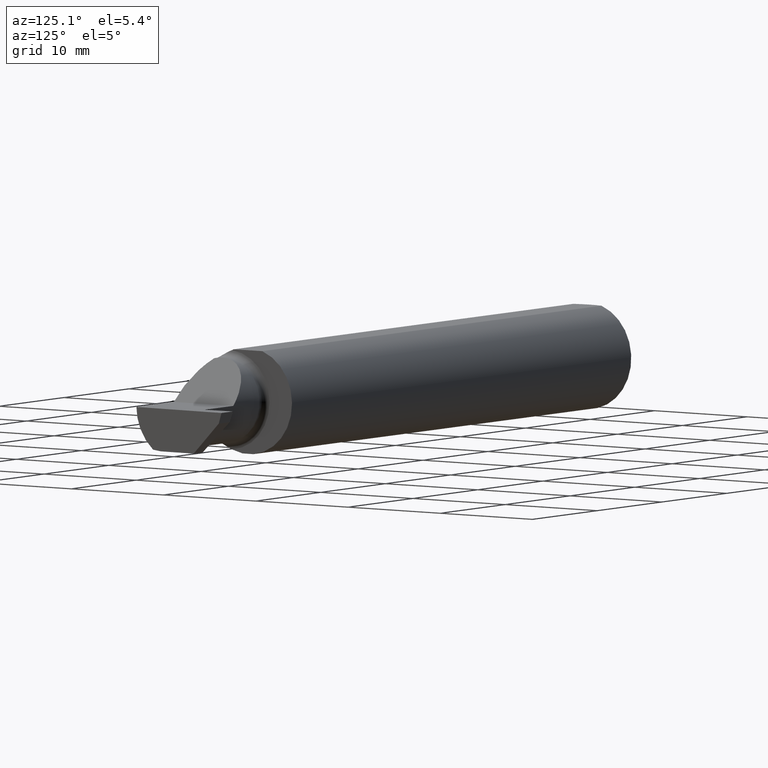
[diagram: clean part render]
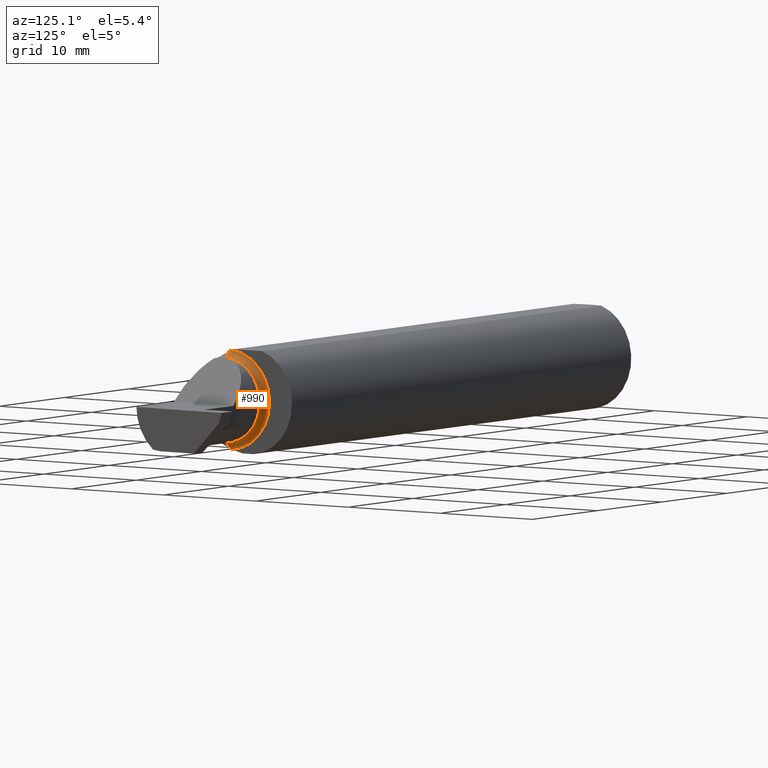
[diagram: same view with one face highlighted and labeled with its STEP entity id]
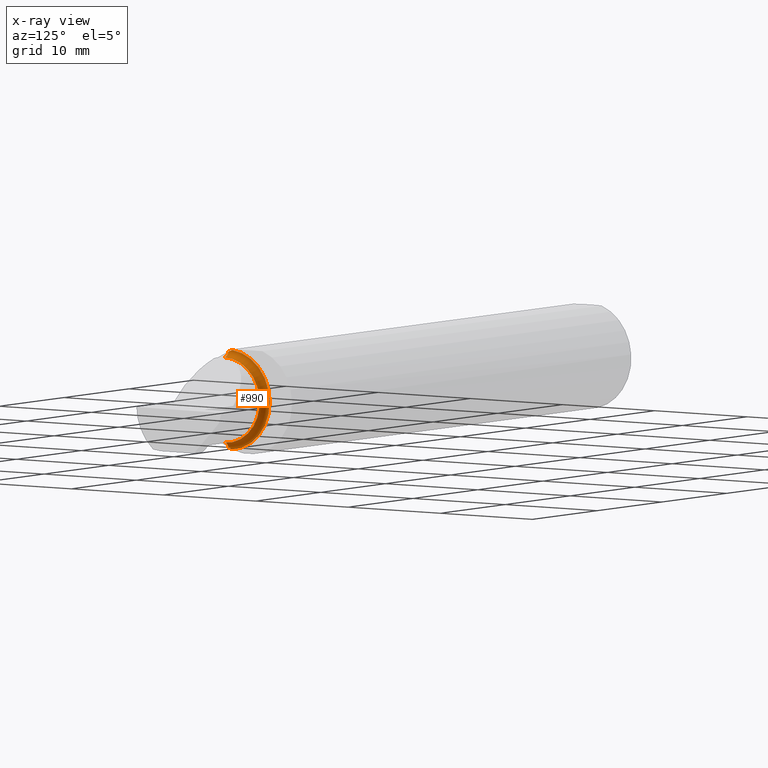
[diagram: x-ray of the same camera — body ghosted, the highlighted face saturated]
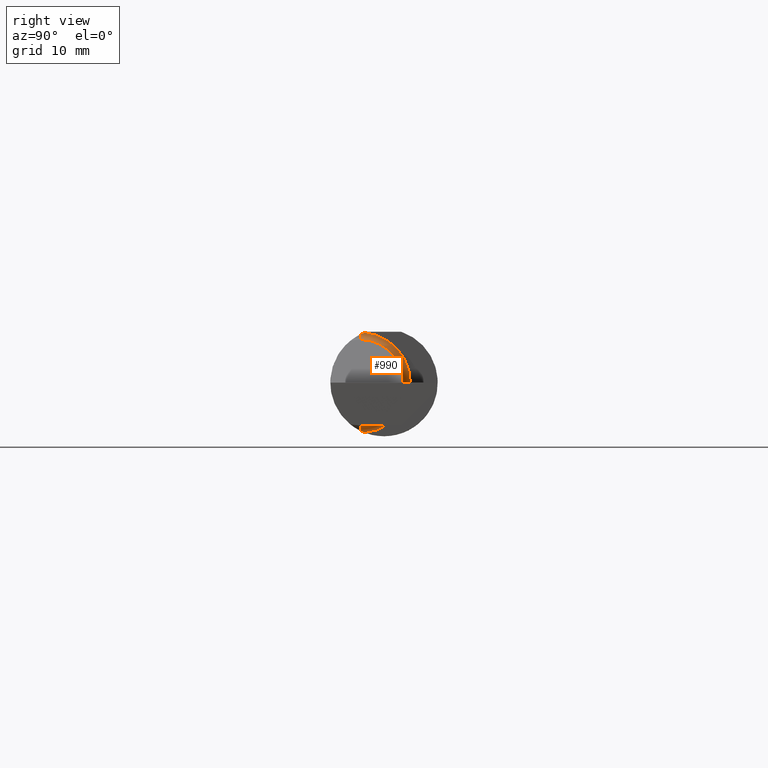
[diagram: same view with one face highlighted and labeled with its STEP entity id]
A machine part, auxiliary view. The second image highlights one B-rep face of the part: STEP entity #990.
The next image is the same camera in x-ray: the body ghosted, the highlighted face saturated — about 0% of this face is hidden behind the body in this view.
A second angle (right view) of the same face is appended — the face is thin or edge-on in the first view.
In plain terms, the highlighted toroidal blend (fillet) surface has major radius 4.445 mm and minor (blend) radius 0.635 mm.
Its self-contained STEP definition (entity closure, byte-faithful):
#20 = DIRECTION ( 'NONE',  ( 0.000000000000000000, 0.000000000000000000, 1.000000000000000000 ) ) ;
#39 = B_SPLINE_CURVE_WITH_KNOTS ( 'NONE', 3,
 ( #339, #425, #998, #661 ),
 .UNSPECIFIED., .F., .F.,
 ( 4, 4 ),
 ( 4.423516731080786679E-05, 0.0004561457252213464405 ),
 .UNSPECIFIED. ) ;
#51 = VERTEX_POINT ( 'NONE', #137 ) ;
#61 = EDGE_CURVE ( 'NONE', #463, #447, #168, .T. ) ;
#63 = DIRECTION ( 'NONE',  ( -1.000000000000000000, -0.000000000000000000, -0.000000000000000000 ) ) ;
#87 = ORIENTED_EDGE ( 'NONE', *, *, #61, .F. ) ;
#114 = CARTESIAN_POINT ( 'NONE',  ( 2.075000000000000178, -0.07359296612170559970, -0.1723769398647691520 ) ) ;
#122 = EDGE_LOOP ( 'NONE', ( #87, #278, #155, #796, #765, #392 ) ) ;
#130 = DIRECTION ( 'NONE',  ( 0.000000000000000000, 0.000000000000000000, 1.000000000000000000 ) ) ;
#131 = AXIS2_PLACEMENT_3D ( 'NONE', #635, #641, #334 ) ;
#133 = TOROIDAL_SURFACE ( 'NONE', #740, 0.1749999999999999889, 0.02499999999999993547 ) ;
#137 = CARTESIAN_POINT ( 'NONE',  ( 2.076062863587533780, -0.08334999999998812803, 0.1677879614275171183 ) ) ;
#141 = EDGE_CURVE ( 'NONE', #463, #1036, #822, .T. ) ;
#142 = EDGE_CURVE ( 'NONE', #241, #51, #39, .T. ) ;
#155 = ORIENTED_EDGE ( 'NONE', *, *, #1020, .F. ) ;
#164 = EDGE_CURVE ( 'NONE', #504, #447, #466, .T. ) ;
#168 = CIRCLE ( 'NONE', #131, 0.02499999999999993894 ) ;
#200 = DIRECTION ( 'NONE',  ( 0.000000000000000000, 0.000000000000000000, 1.000000000000000000 ) ) ;
#231 = AXIS2_PLACEMENT_3D ( 'NONE', #884, #233, #648 ) ;
#233 = DIRECTION ( 'NONE',  ( 0.000000000000000000, -1.000000000000000000, 0.000000000000000000 ) ) ;
#241 = VERTEX_POINT ( 'NONE', #1009 ) ;
#266 = CARTESIAN_POINT ( 'NONE',  ( 2.076062863587535556, -0.08334999999999985476, -0.1677879614275112896 ) ) ;
#278 = ORIENTED_EDGE ( 'NONE', *, *, #141, .T. ) ;
#298 = AXIS2_PLACEMENT_3D ( 'NONE', #618, #63, #200 ) ;
#318 = CARTESIAN_POINT ( 'NONE',  ( 2.100000000000000089, -0.08334999999999995191, -0.1499999999999999944 ) ) ;
#334 = DIRECTION ( 'NONE',  ( 0.000000000000000000, 0.000000000000000000, 1.000000000000000000 ) ) ;
#339 = CARTESIAN_POINT ( 'NONE',  ( 2.075000000000000178, -0.06851976604679065053, 0.1743704796142198643 ) ) ;
#348 = CARTESIAN_POINT ( 'NONE',  ( 2.075346246588685162, -0.07856197451716391555, -0.1701664510438047062 ) ) ;
#375 = EDGE_CURVE ( 'NONE', #51, #504, #1007, .T. ) ;
#392 = ORIENTED_EDGE ( 'NONE', *, *, #164, .T. ) ;
#425 = CARTESIAN_POINT ( 'NONE',  ( 2.074999999999999734, -0.07360907839729495528, 0.1723706084642000758 ) ) ;
#447 = VERTEX_POINT ( 'NONE', #318 ) ;
#463 = VERTEX_POINT ( 'NONE', #716 ) ;
#466 = CIRCLE ( 'NONE', #685, 0.1499999999999999944 ) ;
#504 = VERTEX_POINT ( 'NONE', #917 ) ;
#582 = DIRECTION ( 'NONE',  ( -1.000000000000000000, -0.000000000000000000, -0.000000000000000000 ) ) ;
#595 = CARTESIAN_POINT ( 'NONE',  ( 2.075000000000000178, -0.06851976604679065053, -0.1743704796142198643 ) ) ;
#598 = CARTESIAN_POINT ( 'NONE',  ( 2.100000000000000089, -0.08334999999999995191, 0.000000000000000000 ) ) ;
#618 = CARTESIAN_POINT ( 'NONE',  ( 2.075000000000000178, -0.08334999999999996578, 0.000000000000000000 ) ) ;
#635 = CARTESIAN_POINT ( 'NONE',  ( 2.100000000000000089, -0.08334999999999992415, -0.1749999999999999889 ) ) ;
#641 = DIRECTION ( 'NONE',  ( -0.000000000000000000, 1.000000000000000000, 1.224646799147353207E-16 ) ) ;
#648 = DIRECTION ( 'NONE',  ( 0.000000000000000000, 0.000000000000000000, -1.000000000000000000 ) ) ;
#661 = CARTESIAN_POINT ( 'NONE',  ( 2.076062863587533780, -0.08334999999998812803, 0.1677879614275171183 ) ) ;
#673 = DIRECTION ( 'NONE',  ( -1.000000000000000000, -0.000000000000000000, -0.000000000000000000 ) ) ;
#685 = AXIS2_PLACEMENT_3D ( 'NONE', #985, #582, #20 ) ;
#716 = CARTESIAN_POINT ( 'NONE',  ( 2.076062863587535556, -0.08334999999999985476, -0.1677879614275112896 ) ) ;
#724 = CIRCLE ( 'NONE', #298, 0.1749999999999999889 ) ;
#740 = AXIS2_PLACEMENT_3D ( 'NONE', #598, #673, #130 ) ;
#765 = ORIENTED_EDGE ( 'NONE', *, *, #375, .T. ) ;
#796 = ORIENTED_EDGE ( 'NONE', *, *, #142, .T. ) ;
#822 = B_SPLINE_CURVE_WITH_KNOTS ( 'NONE', 3,
 ( #266, #348, #114, #595 ),
 .UNSPECIFIED., .F., .F.,
 ( 4, 4 ),
 ( 0.001278539404338873775, 0.001694873732696217669 ),
 .UNSPECIFIED. ) ;
#856 = CARTESIAN_POINT ( 'NONE',  ( 2.075000000000000178, -0.06851976604679065053, -0.1743704796142198643 ) ) ;
#864 = FACE_OUTER_BOUND ( 'NONE', #122, .T. ) ;
#884 = CARTESIAN_POINT ( 'NONE',  ( 2.100000000000000089, -0.08334999999999995191, 0.1749999999999999889 ) ) ;
#917 = CARTESIAN_POINT ( 'NONE',  ( 2.100000000000000089, -0.08334999999999996578, 0.1499999999999999944 ) ) ;
#985 = CARTESIAN_POINT ( 'NONE',  ( 2.100000000000000089, -0.08334999999999996578, 0.000000000000000000 ) ) ;
#990 = ADVANCED_FACE ( 'NONE', ( #864 ), #133, .F. ) ;
#998 = CARTESIAN_POINT ( 'NONE',  ( 2.075344683557281300, -0.07855153123406179161, 0.1701716388274757685 ) ) ;
#1007 = CIRCLE ( 'NONE', #231, 0.02499999999999993894 ) ;
#1009 = CARTESIAN_POINT ( 'NONE',  ( 2.075000000000000178, -0.06851976604679065053, 0.1743704796142198643 ) ) ;
#1020 = EDGE_CURVE ( 'NONE', #241, #1036, #724, .T. ) ;
#1036 = VERTEX_POINT ( 'NONE', #856 ) ;